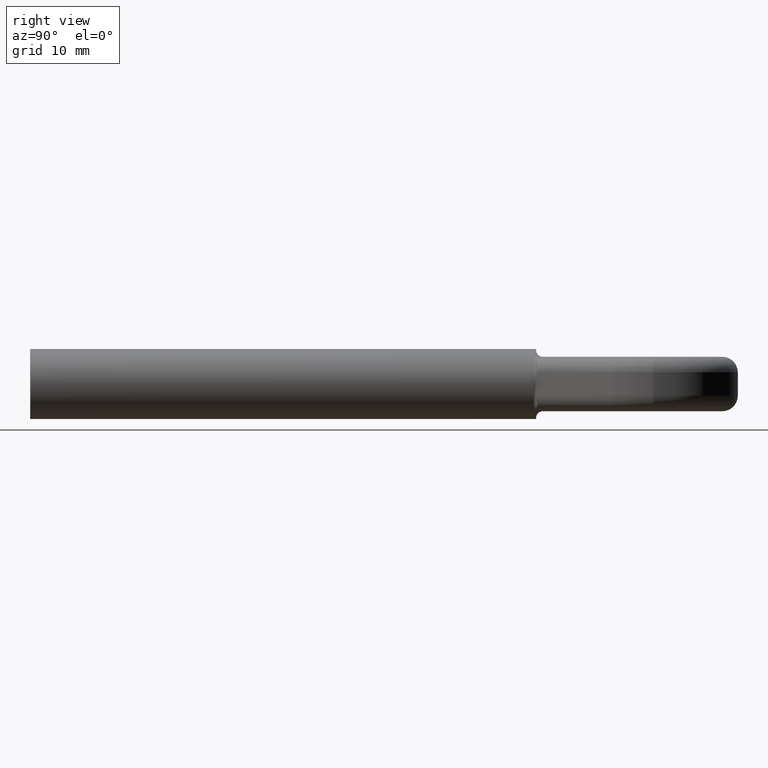
[diagram: clean part render]
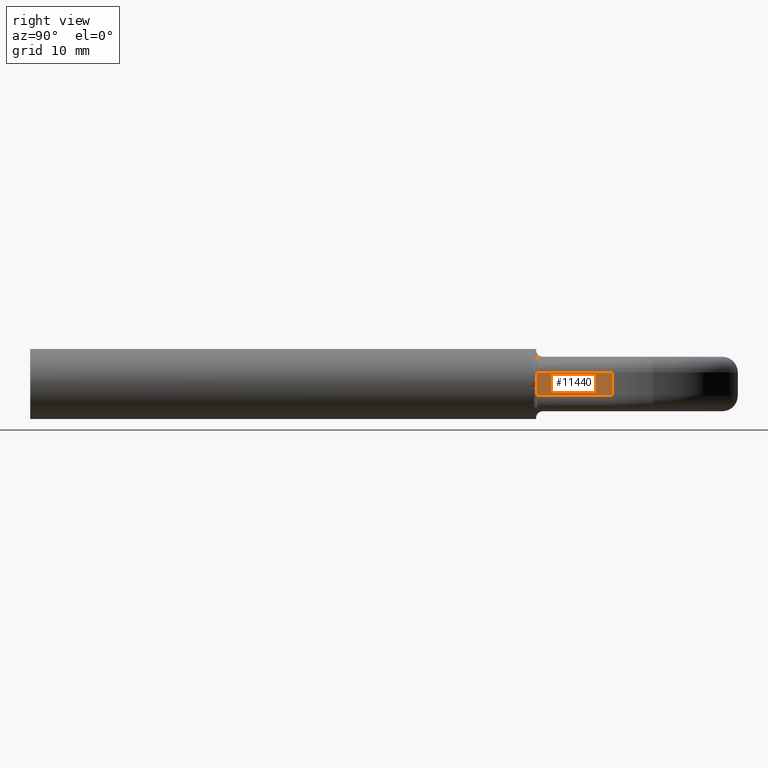
[diagram: same view with one face highlighted and labeled with its STEP entity id]
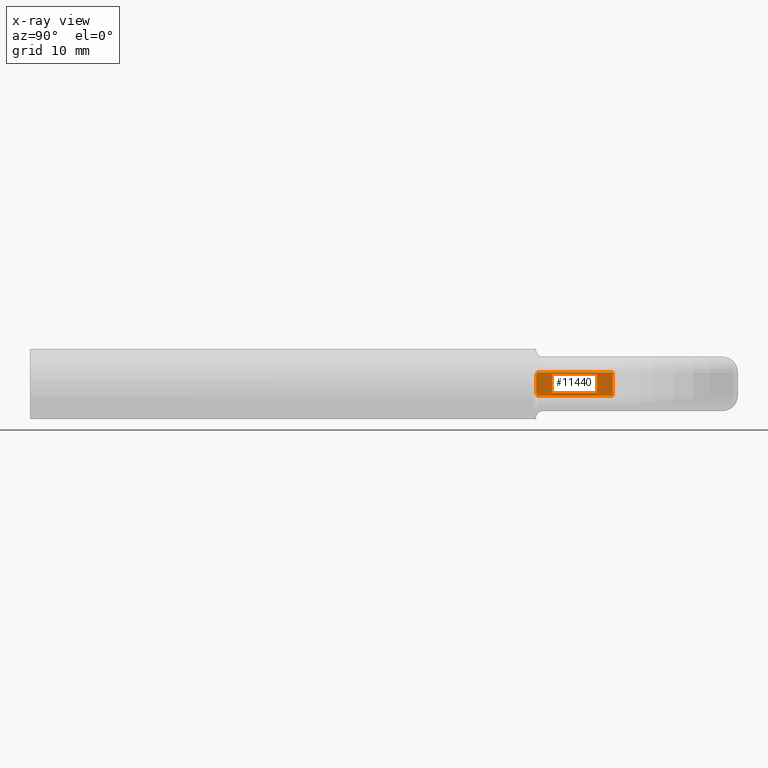
[diagram: x-ray of the same camera — body ghosted, the highlighted face saturated]
A machine part, right view. The second image highlights one B-rep face of the part: STEP entity #11440.
The next image is the same camera in x-ray: the body ghosted, the highlighted face saturated — about 0% of this face is hidden behind the body in this view.
In plain terms, the highlighted planar face has unit normal (-0.8836, 0.4683, 0).
Its self-contained STEP definition (entity closure, byte-faithful):
#179 = CARTESIAN_POINT ( 'NONE',  ( 4.555585382432576047, 65.10488905525326686, -1.500000000000000000 ) ) ;
#245 = EDGE_LOOP ( 'NONE', ( #8389, #1016, #12487, #13567, #15761, #7934, #2286, #582 ) ) ;
#582 = ORIENTED_EDGE ( 'NONE', *, *, #2968, .T. ) ;
#769 = CARTESIAN_POINT ( 'NONE',  ( 4.555585382432568053, 65.10488905525325265, 1.500000000000000000 ) ) ;
#1016 = ORIENTED_EDGE ( 'NONE', *, *, #6664, .T. ) ;
#1047 = EDGE_CURVE ( 'NONE', #9883, #6150, #2245, .T. ) ;
#1238 = CARTESIAN_POINT ( 'NONE',  ( 4.524673210028011816, 65.04655809813026224, -1.035279574537516956 ) ) ;
#1722 = CARTESIAN_POINT ( 'NONE',  ( 4.500000000000000000, 65.00000000000000000, 0.5779551083438302372 ) ) ;
#2010 = EDGE_CURVE ( 'NONE', #2294, #14444, #15719, .T. ) ;
#2222 = CARTESIAN_POINT ( 'NONE',  ( 4.546619465947933314, 65.08797046140003317, -0.1935906726090017016 ) ) ;
#2245 = LINE ( 'NONE', #15470, #13562 ) ;
#2286 = ORIENTED_EDGE ( 'NONE', *, *, #3980, .T. ) ;
#2294 = VERTEX_POINT ( 'NONE', #769 ) ;
#2554 = CARTESIAN_POINT ( 'NONE',  ( 4.500000000000000000, 65.00000000000000000, -0.5779551083483557283 ) ) ;
#2961 = CARTESIAN_POINT ( 'NONE',  ( 4.524673210027871484, 65.04655809812999223, 1.035279574535267422 ) ) ;
#2968 = EDGE_CURVE ( 'NONE', #17197, #11398, #8844, .T. ) ;
#2985 = CARTESIAN_POINT ( 'NONE',  ( 4.500000000000000000, 65.00000000000000000, 3.500000000000000000 ) ) ;
#3135 = VERTEX_POINT ( 'NONE', #179 ) ;
#3164 = DIRECTION ( 'NONE',  ( 0.4682553809516096233, 0.8835931746057474889, -0.000000000000000000 ) ) ;
#3249 = CARTESIAN_POINT ( 'NONE',  ( 4.555585382432568053, 65.10488905525325265, 1.500000000000000000 ) ) ;
#3980 = EDGE_CURVE ( 'NONE', #14444, #17197, #11933, .T. ) ;
#4134 = CARTESIAN_POINT ( 'NONE',  ( 4.500439033530091670, 65.00082845183716529, -0.5865153798912138283 ) ) ;
#4825 = CARTESIAN_POINT ( 'NONE',  ( 4.552668764048678263, 65.09938542581990362, 1.463690412616428294 ) ) ;
#4829 = CARTESIAN_POINT ( 'NONE',  ( 4.551309355325378725, 65.09682023528867489, 1.445501068991081217 ) ) ;
#4953 = LINE ( 'NONE', #13340, #11344 ) ;
#5736 = CARTESIAN_POINT ( 'NONE',  ( 4.516100212909138989, 65.03038093915185414, 0.8872632481181825792 ) ) ;
#5759 = CARTESIAN_POINT ( 'NONE',  ( 4.500000000000000000, 65.00000000000000000, -1.500000000000000000 ) ) ;
#5840 = CARTESIAN_POINT ( 'NONE',  ( 4.541121012594749651, 65.07759493545543705, 1.309177633796145157 ) ) ;
#6150 = VERTEX_POINT ( 'NONE', #8486 ) ;
#6625 = CARTESIAN_POINT ( 'NONE',  ( 4.500000000000000000, 65.00000000000000000, -0.5779551083483557283 ) ) ;
#6664 = EDGE_CURVE ( 'NONE', #16615, #3135, #17361, .T. ) ;
#7157 = CARTESIAN_POINT ( 'NONE',  ( 9.719524920663230816, 74.84919080953230264, 1.500000000000000000 ) ) ;
#7239 = CARTESIAN_POINT ( 'NONE',  ( 4.500658845980084699, 65.00124323571026252, 0.5907954462391487027 ) ) ;
#7367 = CARTESIAN_POINT ( 'NONE',  ( 4.554110549572744304, 65.10210606054216953, 1.481851715658509594 ) ) ;
#7934 = ORIENTED_EDGE ( 'NONE', *, *, #2010, .T. ) ;
#8308 = DIRECTION ( 'NONE',  ( -0.8835931746057474889, 0.4682553809516096233, 0.000000000000000000 ) ) ;
#8389 = ORIENTED_EDGE ( 'NONE', *, *, #15533, .T. ) ;
#8454 = CARTESIAN_POINT ( 'NONE',  ( 4.500439033490851948, 65.00082845176312674, 0.5865153799011889602 ) ) ;
#8486 = CARTESIAN_POINT ( 'NONE',  ( 9.719524920663230816, 74.84919080953230264, -1.500000000000000000 ) ) ;
#8588 = FACE_OUTER_BOUND ( 'NONE', #245, .T. ) ;
#8844 =( BOUNDED_CURVE ( )  B_SPLINE_CURVE ( 3, ( #10277, #8980, #2222, #13206 ),
 .UNSPECIFIED., .F., .F. ) 
 B_SPLINE_CURVE_WITH_KNOTS ( ( 4, 4 ),
 ( 3.020892482045946181, 3.262292825134530005 ),
 .UNSPECIFIED. ) 
 CURVE ( )  GEOMETRIC_REPRESENTATION_ITEM ( )  RATIONAL_B_SPLINE_CURVE ( ( 1.000000000000000000, 0.9951497156148858547, 0.9951497156148858547, 1.000000000000000000 ) ) 
 REPRESENTATION_ITEM ( '' )  );
#8980 = CARTESIAN_POINT ( 'NONE',  ( 4.546619465948105621, 65.08797046140037423, 0.1935906726047206539 ) ) ;
#9346 = DIRECTION ( 'NONE',  ( -0.4682553809516096233, -0.8835931746057474889, -0.000000000000000000 ) ) ;
#9418 = CARTESIAN_POINT ( 'NONE',  ( 4.500658846019732096, 65.00124323578506846, -0.5907954462286835184 ) ) ;
#9883 = VERTEX_POINT ( 'NONE', #7157 ) ;
#10238 = LINE ( 'NONE', #5759, #10896 ) ;
#10277 = CARTESIAN_POINT ( 'NONE',  ( 4.500000000000000000, 65.00000000000000000, 0.5779551083438302372 ) ) ;
#10781 = CARTESIAN_POINT ( 'NONE',  ( 4.541121012594742545, 65.07759493545542284, -1.309177633796912321 ) ) ;
#10843 = CARTESIAN_POINT ( 'NONE',  ( 4.500219615339912771, 65.00041441192836089, -0.5822352212402162053 ) ) ;
#10896 = VECTOR ( 'NONE', #3164, 999.9999999999998863 ) ;
#11051 = DIRECTION ( 'NONE',  ( -0.4682553809516096233, -0.8835931746057474889, 0.000000000000000000 ) ) ;
#11344 = VECTOR ( 'NONE', #9346, 999.9999999999998863 ) ;
#11398 = VERTEX_POINT ( 'NONE', #6625 ) ;
#11440 = ADVANCED_FACE ( 'NONE', ( #8588 ), #15126, .F. ) ;
#11933 = B_SPLINE_CURVE_WITH_KNOTS ( 'NONE', 3,
 ( #13995, #5840, #15441, #2961, #5736, #15266, #7239, #8454, #12576, #16785 ),
 .UNSPECIFIED., .F., .F.,
 ( 4, 3, 3, 4 ),
 ( 2.521323749391761760E-17, 0.0004141466421228212256, 0.0008615461571188237373, 0.0008744633541830114983 ),
 .UNSPECIFIED. ) ;
#12114 = CARTESIAN_POINT ( 'NONE',  ( 4.532608427527227590, 65.06153177340777916, -1.172284373126246004 ) ) ;
#12174 = CARTESIAN_POINT ( 'NONE',  ( 4.551309355325916961, 65.09682023528969808, -1.445501068990897364 ) ) ;
#12469 = EDGE_CURVE ( 'NONE', #9883, #2294, #4953, .T. ) ;
#12487 = ORIENTED_EDGE ( 'NONE', *, *, #15198, .T. ) ;
#12576 = CARTESIAN_POINT ( 'NONE',  ( 4.500219615326692235, 65.00041441190340663, 0.5822352212437075236 ) ) ;
#12956 = DIRECTION ( 'NONE',  ( -0.000000000000000000, -0.000000000000000000, -1.000000000000000000 ) ) ;
#13206 = CARTESIAN_POINT ( 'NONE',  ( 4.500000000000000000, 65.00000000000000000, -0.5779551083483557283 ) ) ;
#13340 = CARTESIAN_POINT ( 'NONE',  ( 4.500000000000000000, 65.00000000000000000, 1.500000000000000000 ) ) ;
#13408 = CARTESIAN_POINT ( 'NONE',  ( 4.516100212909218037, 65.03038093915199624, -0.8872632481194538956 ) ) ;
#13562 = VECTOR ( 'NONE', #12956, 1000.000000000000000 ) ;
#13567 = ORIENTED_EDGE ( 'NONE', *, *, #1047, .F. ) ;
#13660 = CARTESIAN_POINT ( 'NONE',  ( 4.508272831903116007, 65.01561075024785907, -0.7390507374854697886 ) ) ;
#13995 = CARTESIAN_POINT ( 'NONE',  ( 4.551309355325378725, 65.09682023528867489, 1.445501068991081217 ) ) ;
#14136 = AXIS2_PLACEMENT_3D ( 'NONE', #2985, #8308, #11051 ) ;
#14444 = VERTEX_POINT ( 'NONE', #4829 ) ;
#14590 = CARTESIAN_POINT ( 'NONE',  ( 4.552668764048688033, 65.09938542581991783, -1.463690412616491354 ) ) ;
#15126 = PLANE ( 'NONE',  #14136 ) ;
#15198 = EDGE_CURVE ( 'NONE', #3135, #6150, #10238, .T. ) ;
#15266 = CARTESIAN_POINT ( 'NONE',  ( 4.508272831848640472, 65.01561075014507196, 0.7390507374984156552 ) ) ;
#15288 = CARTESIAN_POINT ( 'NONE',  ( 4.551309355325916961, 65.09682023528969808, -1.445501068990897364 ) ) ;
#15441 = CARTESIAN_POINT ( 'NONE',  ( 4.532608427527126338, 65.06153177340758020, 1.172284373124747425 ) ) ;
#15470 = CARTESIAN_POINT ( 'NONE',  ( 9.719524920663230816, 74.84919080953230264, 3.500000000000000000 ) ) ;
#15533 = EDGE_CURVE ( 'NONE', #11398, #16615, #16727, .T. ) ;
#15719 = B_SPLINE_CURVE_WITH_KNOTS ( 'NONE', 3,
 ( #3249, #7367, #4825, #16966 ),
 .UNSPECIFIED., .F., .F.,
 ( 4, 4 ),
 ( 1.601018260831544590E-16, 5.525869836088773287E-05 ),
 .UNSPECIFIED. ) ;
#15761 = ORIENTED_EDGE ( 'NONE', *, *, #12469, .T. ) ;
#16102 = CARTESIAN_POINT ( 'NONE',  ( 4.551309355325916961, 65.09682023528969808, -1.445501068990897364 ) ) ;
#16169 = CARTESIAN_POINT ( 'NONE',  ( 4.554110549572740752, 65.10210606054216953, -1.481851715658625501 ) ) ;
#16230 = CARTESIAN_POINT ( 'NONE',  ( 4.555585382432576047, 65.10488905525326686, -1.500000000000000000 ) ) ;
#16615 = VERTEX_POINT ( 'NONE', #15288 ) ;
#16727 = B_SPLINE_CURVE_WITH_KNOTS ( 'NONE', 3,
 ( #2554, #10843, #4134, #9418, #13660, #13408, #1238, #12114, #10781, #12174 ),
 .UNSPECIFIED., .F., .F.,
 ( 4, 3, 3, 4 ),
 ( -1.291719706301059702E-05, 0.000000000000000000, 0.0004474329745856343030, 0.0008616105894156175088 ),
 .UNSPECIFIED. ) ;
#16785 = CARTESIAN_POINT ( 'NONE',  ( 4.500000000000000000, 65.00000000000000000, 0.5779551083438302372 ) ) ;
#16966 = CARTESIAN_POINT ( 'NONE',  ( 4.551309355325378725, 65.09682023528867489, 1.445501068991081217 ) ) ;
#17197 = VERTEX_POINT ( 'NONE', #1722 ) ;
#17361 = B_SPLINE_CURVE_WITH_KNOTS ( 'NONE', 3,
 ( #16102, #14590, #16169, #16230 ),
 .UNSPECIFIED., .F., .F.,
 ( 4, 4 ),
 ( 1.517883041479706208E-18, 5.525869836103770513E-05 ),
 .UNSPECIFIED. ) ;